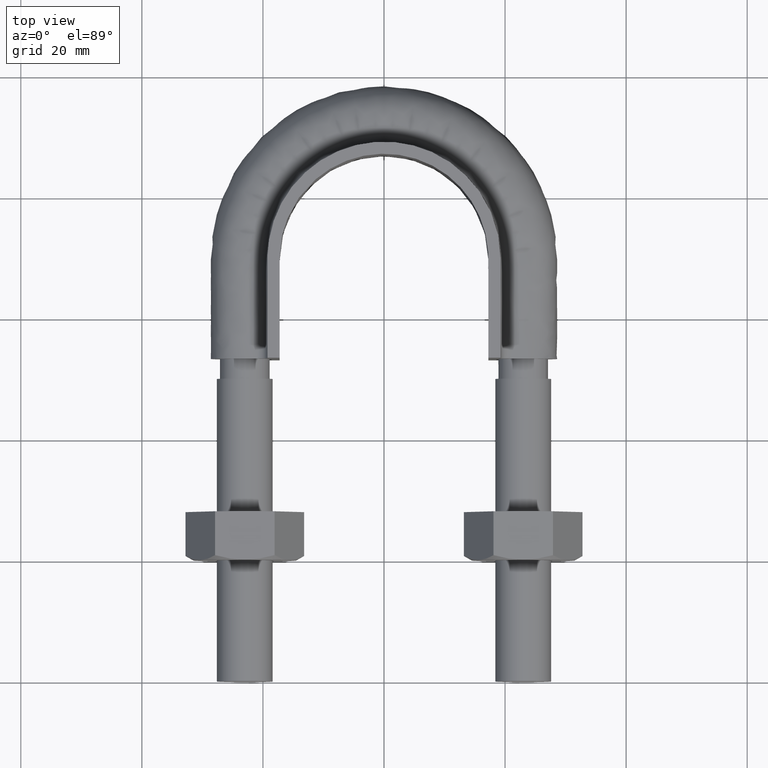
[diagram: clean part render]
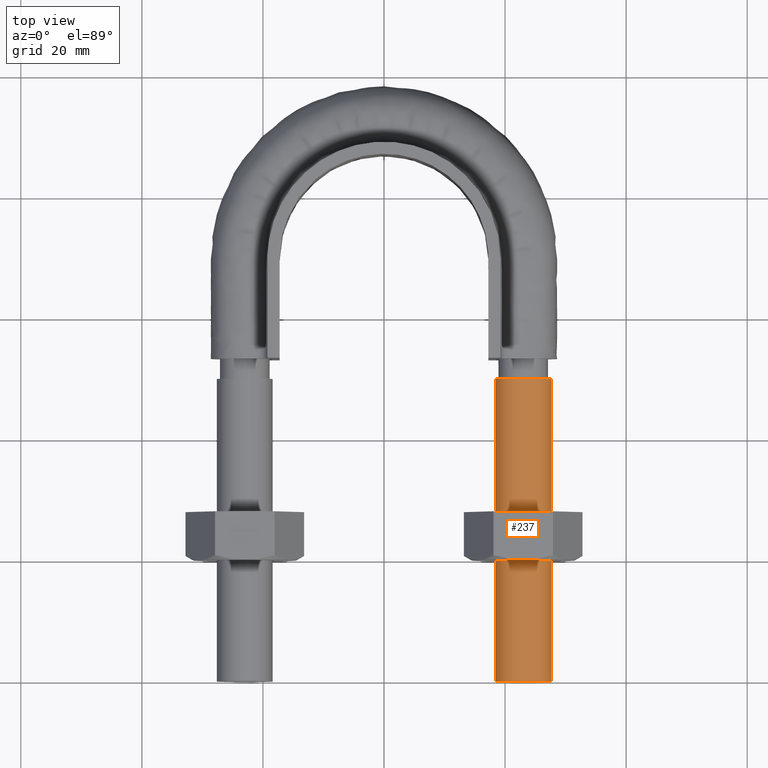
[diagram: same view with one face highlighted and labeled with its STEP entity id]
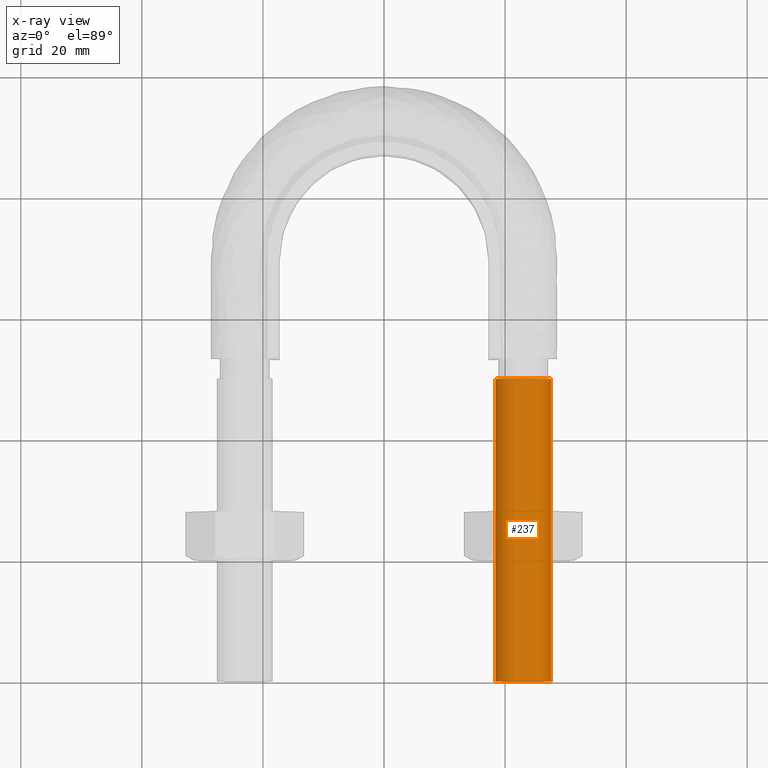
[diagram: x-ray of the same camera — body ghosted, the highlighted face saturated]
A machine part, top view. The second image highlights one B-rep face of the part: STEP entity #237.
The next image is the same camera in x-ray: the body ghosted, the highlighted face saturated — about 0% of this face is hidden behind the body in this view.
In plain terms, the highlighted cylindrical surface (bore or boss wall) has radius 4.6 mm, axis along (-0, -1, -0).
Its self-contained STEP definition (entity closure, byte-faithful):
#237 = ADVANCED_FACE( '', ( #339, #340 ), #341, .T. );
#339 = FACE_OUTER_BOUND( '', #1336, .T. );
#340 = FACE_OUTER_BOUND( '', #1337, .T. );
#341 = CYLINDRICAL_SURFACE( '', #1338, 4.60000000000000 );
#1336 = EDGE_LOOP( '', ( #1599 ) );
#1337 = EDGE_LOOP( '', ( #1600 ) );
#1338 = AXIS2_PLACEMENT_3D( '', #1601, #1602, #1603 );
#1599 = ORIENTED_EDGE( '', *, *, #2049, .F. );
#1600 = ORIENTED_EDGE( '', *, *, #2050, .T. );
#1601 = CARTESIAN_POINT( '', ( 23.0000000000000, 50.0000000000000, 1.54147324787392E-014 ) );
#1602 = DIRECTION( '', ( -2.44921270764475E-016, -1.00000000000000, -3.06151588455594E-016 ) );
#1603 = DIRECTION( '', ( 1.00000000000000, -2.44921270764475E-016, -3.74915180455534E-032 ) );
#2049 = EDGE_CURVE( '', #2229, #2229, #2230, .T. );
#2050 = EDGE_CURVE( '', #2231, #2231, #2232, .T. );
#2229 = VERTEX_POINT( '', #2669 );
#2230 = CIRCLE( '', #2670, 4.60000000000000 );
#2231 = VERTEX_POINT( '', #2671 );
#2232 = CIRCLE( '', #2672, 4.60000000000000 );
#2669 = CARTESIAN_POINT( '', ( 27.6000000000000, -6.75982707309952E-015, 1.07153055959457E-016 ) );
#2670 = AXIS2_PLACEMENT_3D( '', #3061, #3062, #3063 );
#2671 = CARTESIAN_POINT( '', ( 27.6000000000000, 50.0000000000000, 1.54147324787392E-014 ) );
#2672 = AXIS2_PLACEMENT_3D( '', #3064, #3065, #3066 );
#3061 = CARTESIAN_POINT( '', ( 23.0000000000000, -5.63318922758294E-015, 1.07153055959457E-016 ) );
#3062 = DIRECTION( '', ( -2.44921270764475E-016, -1.00000000000000, -3.06151588455594E-016 ) );
#3063 = DIRECTION( '', ( 1.00000000000000, -2.44921270764475E-016, -3.74915180455534E-032 ) );
#3064 = CARTESIAN_POINT( '', ( 23.0000000000000, 50.0000000000000, 1.54147324787392E-014 ) );
#3065 = DIRECTION( '', ( -2.44921270764475E-016, -1.00000000000000, -3.06151588455594E-016 ) );
#3066 = DIRECTION( '', ( 1.00000000000000, -2.44921270764475E-016, -3.74915180455534E-032 ) );